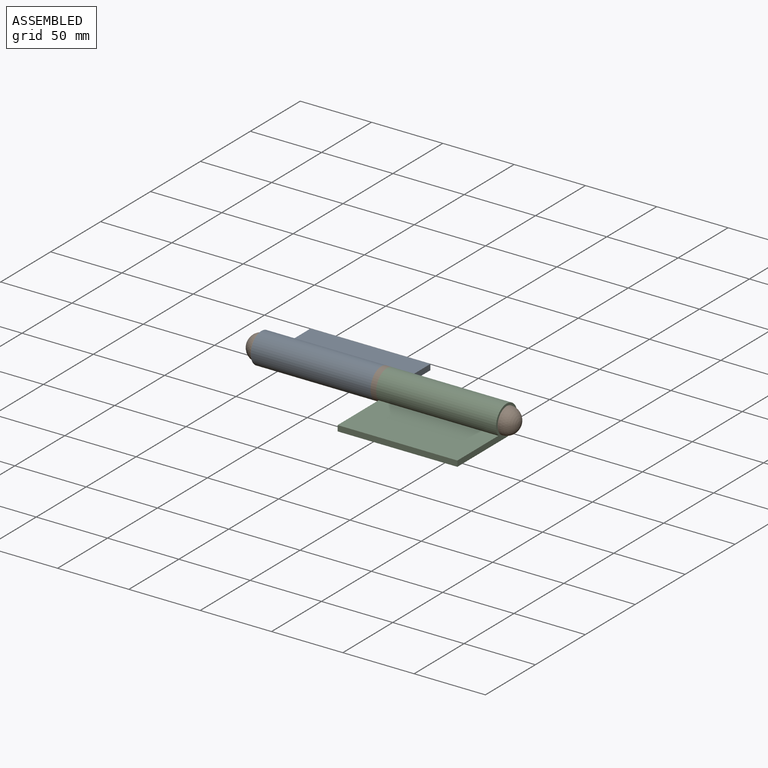
[diagram: assembled view]
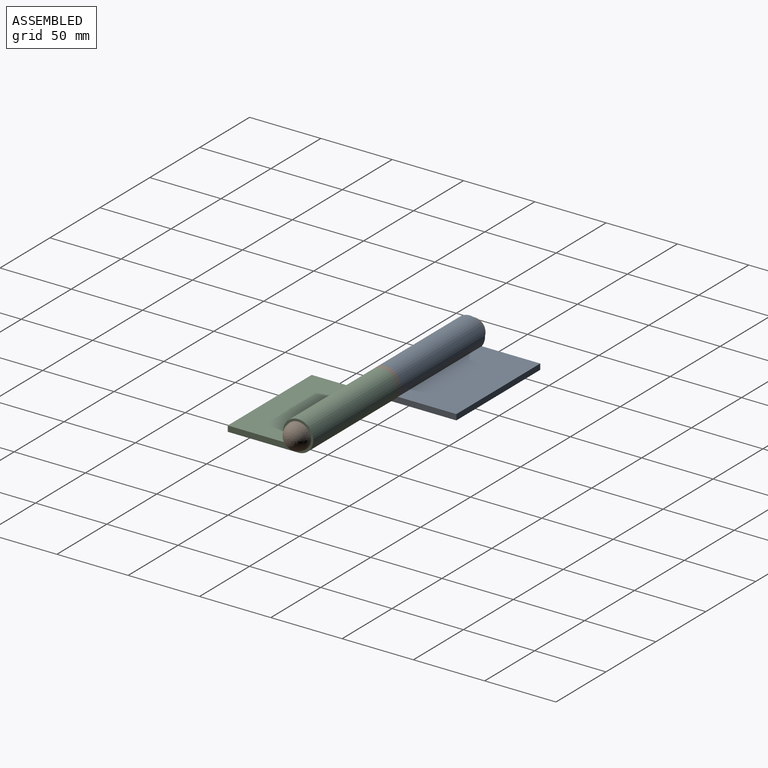
[diagram: assembled view, second angle]
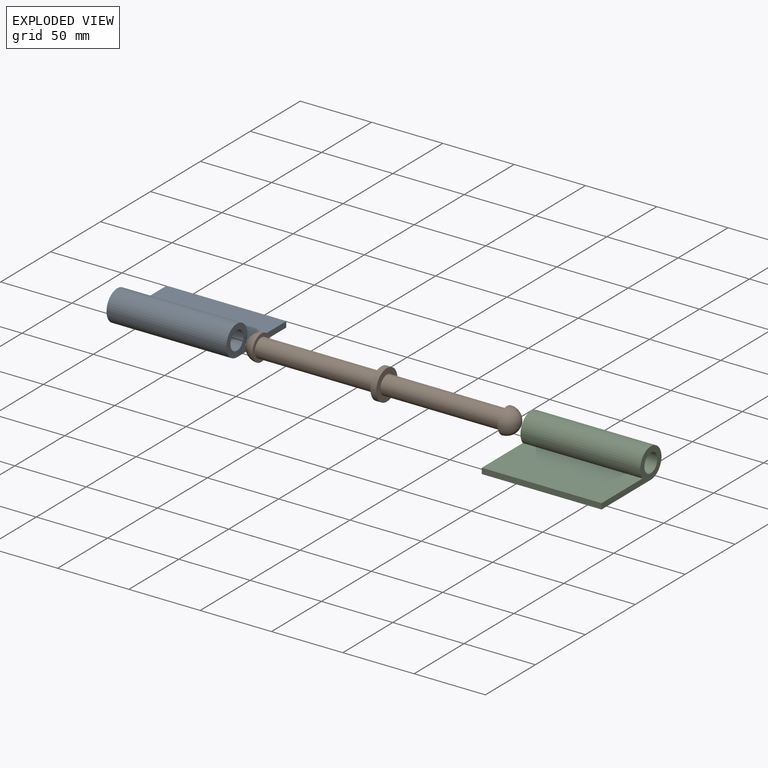
[diagram: exploded view]
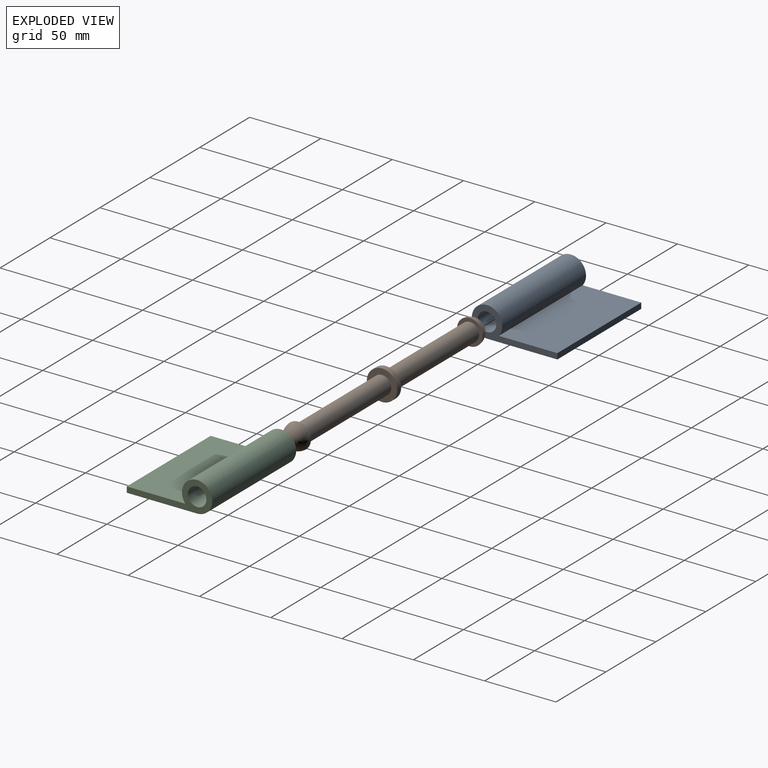
[diagram: exploded view, second angle]
ASSEMBLY  parts=3 mates=2
PART A: 7 faces, bbox 84x60x21.3 mm
  f0: plane 84x41.03mm, normal (0,0,1), area 3446.6mm2, adj f1,f4,f5,f6
  f1: cylinder r=10.65mm len=84mm, axis (-1,0,0), area 4819mm2, adj f0,f2,f5,f6
  f2: plane 84x49.35mm, normal (0,0,-1), area 4145.4mm2, adj f1,f4,f5,f6
  f3: cylinder r=6.5mm len=84mm, axis (-1,0,0), area 3430.6mm2, adj f5,f6
  f4: plane 84x4mm, normal (0,1,0), area 336mm2, adj f0,f2,f5,f6
  f5: plane 60x21.3mm, normal (1,0,0), area 397.8mm2, adj f0,f1,f2,f3,f4
  f6: plane 60x21.3mm, normal (-1,0,0), area 397.8mm2, adj f0,f1,f2,f3,f4
PART B: 9 faces, bbox 190x21.3x21.3 mm
  f0: cylinder r=6.5mm len=84mm, axis (-1,0,0), area 3430.6mm2, adj f1,f8
  f1: plane 18x18mm, normal (1,0,0), area 121.7mm2, adj f0,f2
  f2: sphere r=9mm, area 508.9mm2, adj f1
  f3: sphere r=9mm, area 508.9mm2, adj f4
  f4: plane 18x18mm, normal (-1,0,0), area 121.7mm2, adj f3,f5
  f5: cylinder r=6.5mm len=84mm, axis (-1,0,0), area 3430.6mm2, adj f4,f6
  f6: plane 21.3x21.3mm, normal (1,0,0), area 223.6mm2, adj f5,f7
  f7: cylinder r=10.65mm len=21.3mm, axis (-1,0,0), area 267.7mm2, adj f6,f8
  f8: plane 21.3x21.3mm, normal (-1,0,0), area 223.6mm2, adj f0,f7
PART C: same geometry as A
PLACE A t=(-108.96,-11.73,-5.05)mm
PLACE B t=(-22.96,-11.73,-5.05)mm
PLACE C rot(axis=(0,0,1),180deg) t=(63.04,-11.73,-5.05)mm
MATE revolute C.f1 <-> B.f0  axis (1,0,0) through (63.04,-11.73,-5.05)mm
MATE revolute A.f1 <-> B.f0  axis (-1,0,0) through (-108.96,-11.73,-5.05)mm
